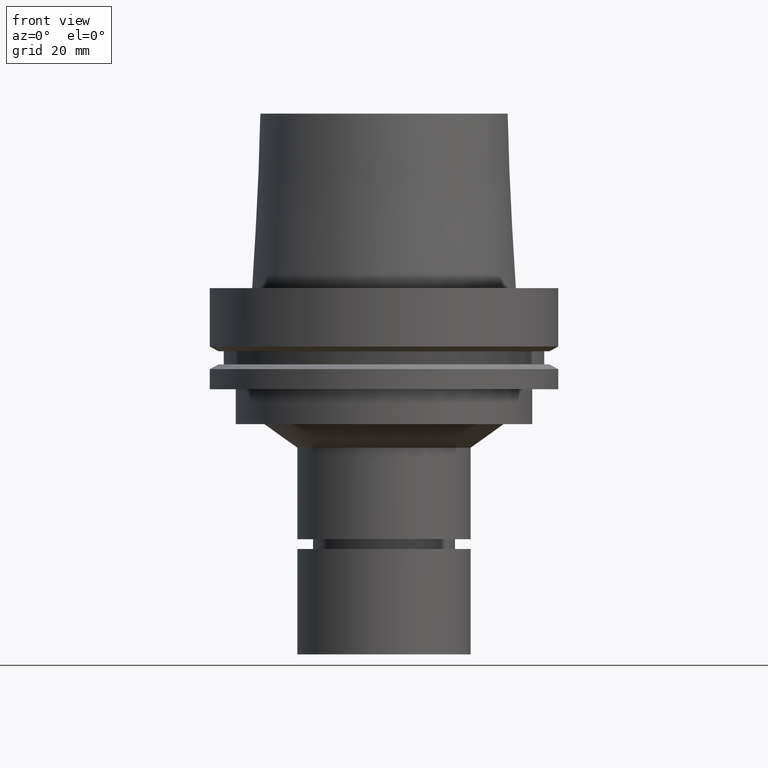
[diagram: clean part render]
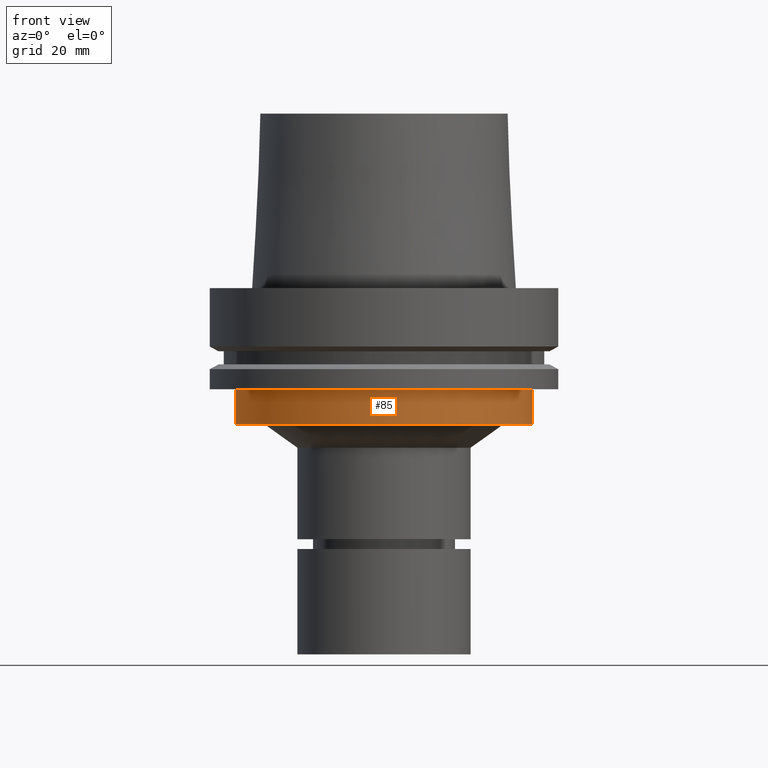
[diagram: same view with one face highlighted and labeled with its STEP entity id]
A machine part, front view. The second image highlights one B-rep face of the part: STEP entity #85.
In plain terms, the highlighted cylindrical surface (bore or boss wall) has radius 42.5 mm, axis along (0, 0, -1).
Its self-contained STEP definition (entity closure, byte-faithful):
#85=ADVANCED_FACE('Unnamed[1]',(#228,#229),#230,.T.);
#95=EDGE_CURVE('Unnamed[1]',#243,#243,#244,.T.);
#153=EDGE_CURVE('Unnamed[1]',#332,#332,#333,.T.);
#228=FACE_BOUND('',#429,.T.);
#229=FACE_BOUND('',#430,.T.);
#230=CYLINDRICAL_SURFACE('',#431,42.5);
#243=VERTEX_POINT('',#447);
#244=CIRCLE('',#448,42.5);
#332=VERTEX_POINT('',#558);
#333=CIRCLE('',#559,42.5);
#429=EDGE_LOOP('',(#662));
#430=EDGE_LOOP('',(#663));
#431=AXIS2_PLACEMENT_3D('',#664,#665,#666);
#447=CARTESIAN_POINT('',(1.77573785876366E-015,42.5,-29.0));
#448=AXIS2_PLACEMENT_3D('',#677,#678,#679);
#558=CARTESIAN_POINT('',(2.38806125833734E-015,42.5,-39.0));
#559=AXIS2_PLACEMENT_3D('',#775,#776,#777);
#662=ORIENTED_EDGE('',*,*,#153,.F.);
#663=ORIENTED_EDGE('',*,*,#95,.T.);
#664=CARTESIAN_POINT('',(2.0818995585505E-015,4.163799117101E-015,-34.0));
#665=DIRECTION('',(6.12323399573677E-017,1.22464679914735E-016,-1.0));
#666=DIRECTION('',(-1.23259516440783E-032,1.0,1.22464679914735E-016));
#677=CARTESIAN_POINT('',(1.77573785876366E-015,3.55147571752733E-015,-29.0));
#678=DIRECTION('',(6.12323399573677E-017,1.22464679914735E-016,-1.0));
#679=DIRECTION('',(-1.23259516440783E-032,1.0,1.22464679914735E-016));
#775=CARTESIAN_POINT('',(2.38806125833734E-015,4.77612251667468E-015,-39.0));
#776=DIRECTION('',(6.12323399573677E-017,1.22464679914735E-016,-1.0));
#777=DIRECTION('',(-1.23259516440783E-032,1.0,1.22464679914735E-016));